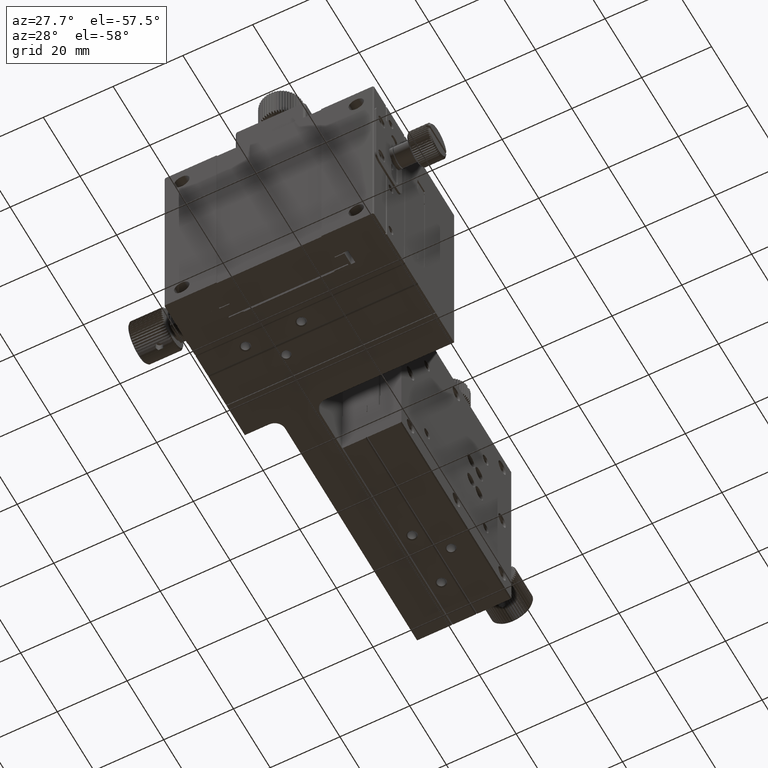
[diagram: clean part render]
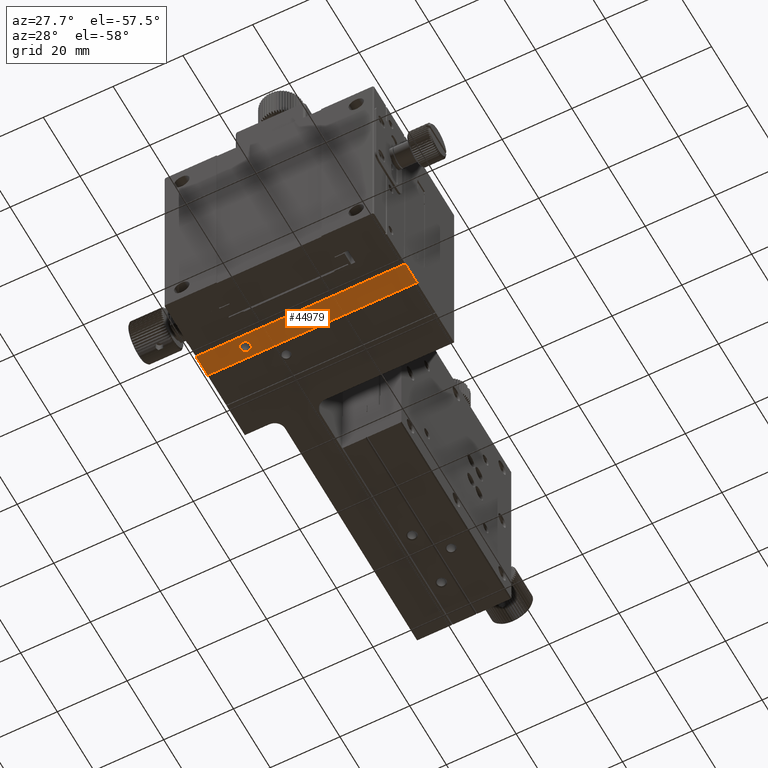
[diagram: same view with one face highlighted and labeled with its STEP entity id]
A machine part, auxiliary view. The second image highlights one B-rep face of the part: STEP entity #44979.
In plain terms, the highlighted planar face has unit normal (0, 0, 1).
Its self-contained STEP definition (entity closure, byte-faithful):
#297 = DIRECTION ( 'NONE',  ( -1.000000000000000000, 0.000000000000000000, 0.000000000000000000 ) ) ;
#502 = ORIENTED_EDGE ( 'NONE', *, *, #565, .T. ) ;
#565 = EDGE_CURVE ( 'NONE', #61432, #23209, #61410, .T. ) ;
#2445 = ORIENTED_EDGE ( 'NONE', *, *, #46909, .F. ) ;
#2472 = EDGE_CURVE ( 'NONE', #51842, #51842, #29986, .T. ) ;
#3739 = CARTESIAN_POINT ( 'NONE',  ( 60.00000000000000000, -10.29999999999998117, -60.00000000000000000 ) ) ;
#4058 = VECTOR ( 'NONE', #16134, 1000.000000000000000 ) ;
#6681 = ORIENTED_EDGE ( 'NONE', *, *, #53679, .F. ) ;
#8360 = VECTOR ( 'NONE', #37218, 1000.000000000000000 ) ;
#8801 = EDGE_LOOP ( 'NONE', ( #38673 ) ) ;
#11036 = LINE ( 'NONE', #40934, #4058 ) ;
#13781 = ORIENTED_EDGE ( 'NONE', *, *, #59501, .F. ) ;
#15052 = DIRECTION ( 'NONE',  ( -0.000000000000000000, 1.000000000000000000, 0.000000000000000000 ) ) ;
#16134 = DIRECTION ( 'NONE',  ( 1.000000000000000000, 0.000000000000000000, -0.000000000000000000 ) ) ;
#18873 = FACE_BOUND ( 'NONE', #8801, .T. ) ;
#20150 = CARTESIAN_POINT ( 'NONE',  ( 0.000000000000000000, -16.69999999999999218, -60.00000000000000000 ) ) ;
#21543 = VECTOR ( 'NONE', #34009, 1000.000000000000000 ) ;
#22133 = DIRECTION ( 'NONE',  ( -1.000000000000000000, 0.000000000000000000, 0.000000000000000000 ) ) ;
#23209 = VERTEX_POINT ( 'NONE', #51074 ) ;
#23519 = CARTESIAN_POINT ( 'NONE',  ( 0.000000000000000000, -17.00000000000000000, -60.00000000000000000 ) ) ;
#24023 = VECTOR ( 'NONE', #15052, 1000.000000000000000 ) ;
#25303 = AXIS2_PLACEMENT_3D ( 'NONE', #47069, #48060, #297 ) ;
#27784 = EDGE_LOOP ( 'NONE', ( #13781, #6681, #2445, #502 ) ) ;
#29986 = CIRCLE ( 'NONE', #54333, 1.500000000032742475 ) ;
#30533 = AXIS2_PLACEMENT_3D ( 'NONE', #34152, #57682, #58624 ) ;
#34009 = DIRECTION ( 'NONE',  ( -1.000000000000000000, -0.000000000000000000, 0.000000000000000000 ) ) ;
#34152 = CARTESIAN_POINT ( 'NONE',  ( 60.00000000000000000, -16.69999999999998863, -60.00000000000000000 ) ) ;
#34157 = CARTESIAN_POINT ( 'NONE',  ( 60.00000000000000000, -10.29999999999997939, -60.00000000000000000 ) ) ;
#34477 = VERTEX_POINT ( 'NONE', #49411 ) ;
#37218 = DIRECTION ( 'NONE',  ( -0.000000000000000000, 1.000000000000000000, 0.000000000000000000 ) ) ;
#37975 = CARTESIAN_POINT ( 'NONE',  ( 60.00000000000000000, -16.69999999999999218, -60.00000000000000000 ) ) ;
#38673 = ORIENTED_EDGE ( 'NONE', *, *, #2472, .F. ) ;
#38929 = PLANE ( 'NONE',  #30533 ) ;
#40934 = CARTESIAN_POINT ( 'NONE',  ( 60.00000000000000000, -16.69999999999998863, -60.00000000000000000 ) ) ;
#41547 = CARTESIAN_POINT ( 'NONE',  ( 12.50000000000000000, -13.50000000000000178, -60.00000000000227374 ) ) ;
#44001 = LINE ( 'NONE', #47600, #24023 ) ;
#44979 = ADVANCED_FACE ( 'NONE', ( #62476, #18873, #53211 ), #38929, .F. ) ;
#46909 = EDGE_CURVE ( 'NONE', #61432, #55225, #11036, .T. ) ;
#47069 = CARTESIAN_POINT ( 'NONE',  ( 28.50000000000000000, -13.50000000000000178, -60.00000000000227374 ) ) ;
#47393 = LINE ( 'NONE', #3739, #21543 ) ;
#47600 = CARTESIAN_POINT ( 'NONE',  ( 60.00000000000000000, -17.00000000000000000, -60.00000000000000000 ) ) ;
#48060 = DIRECTION ( 'NONE',  ( 0.000000000000000000, 0.000000000000000000, -1.000000000000000000 ) ) ;
#48349 = EDGE_LOOP ( 'NONE', ( #61289 ) ) ;
#49411 = CARTESIAN_POINT ( 'NONE',  ( 26.99999999998681233, -13.50000000000000178, -60.00000000000227374 ) ) ;
#51074 = CARTESIAN_POINT ( 'NONE',  ( 0.000000000000000000, -10.29999999999997939, -60.00000000000000000 ) ) ;
#51842 = VERTEX_POINT ( 'NONE', #55335 ) ;
#52735 = CIRCLE ( 'NONE', #25303, 1.500000000013188783 ) ;
#53211 = FACE_BOUND ( 'NONE', #48349, .T. ) ;
#53679 = EDGE_CURVE ( 'NONE', #55225, #59260, #44001, .T. ) ;
#54333 = AXIS2_PLACEMENT_3D ( 'NONE', #41547, #61591, #22133 ) ;
#55225 = VERTEX_POINT ( 'NONE', #37975 ) ;
#55335 = CARTESIAN_POINT ( 'NONE',  ( 10.99999999996725819, -13.50000000000000178, -60.00000000000227374 ) ) ;
#55546 = EDGE_CURVE ( 'NONE', #34477, #34477, #52735, .T. ) ;
#57682 = DIRECTION ( 'NONE',  ( 0.000000000000000000, 0.000000000000000000, 1.000000000000000000 ) ) ;
#58624 = DIRECTION ( 'NONE',  ( 1.000000000000000000, 0.000000000000000000, -0.000000000000000000 ) ) ;
#59260 = VERTEX_POINT ( 'NONE', #34157 ) ;
#59501 = EDGE_CURVE ( 'NONE', #59260, #23209, #47393, .T. ) ;
#61289 = ORIENTED_EDGE ( 'NONE', *, *, #55546, .F. ) ;
#61410 = LINE ( 'NONE', #23519, #8360 ) ;
#61432 = VERTEX_POINT ( 'NONE', #20150 ) ;
#61591 = DIRECTION ( 'NONE',  ( 0.000000000000000000, 0.000000000000000000, -1.000000000000000000 ) ) ;
#62476 = FACE_OUTER_BOUND ( 'NONE', #27784, .T. ) ;